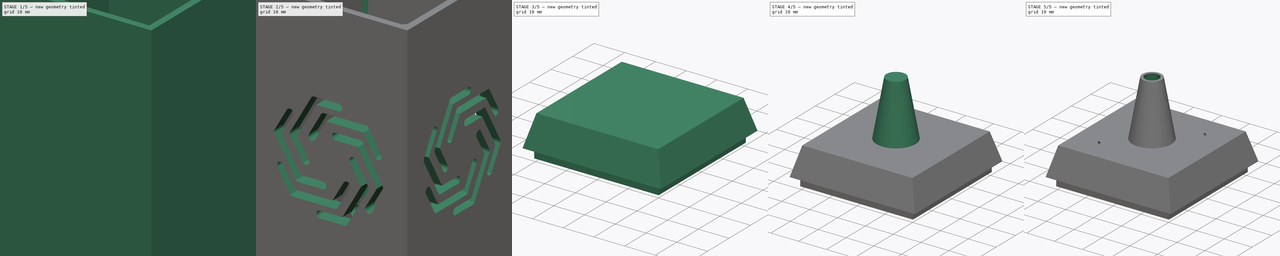
[diagram: build sequence overview — one tinted view per stage of 5, left to right]
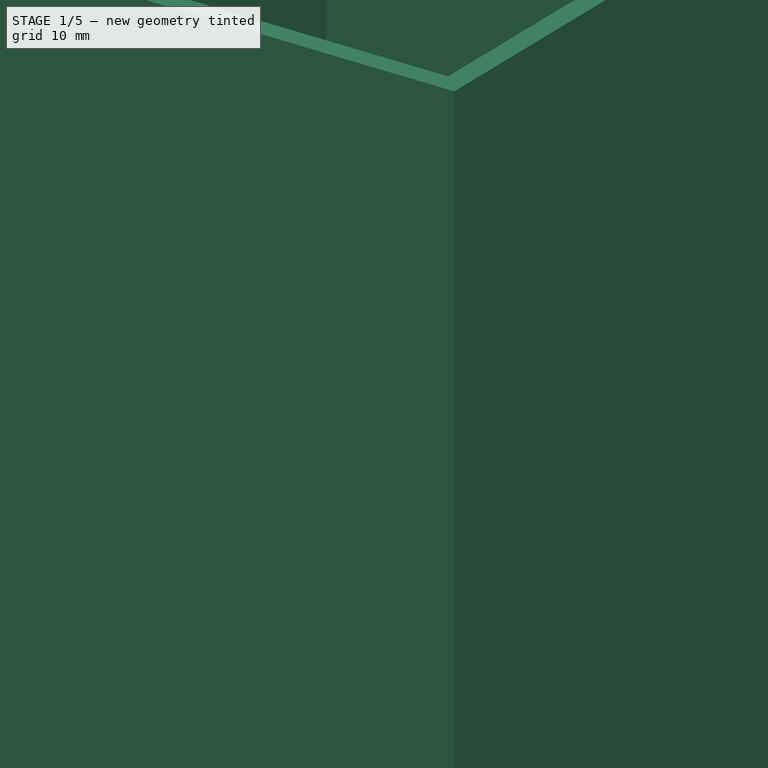
[diagram: stage 1 of 5 — iso view after this stage's code; geometry added in this stage tinted green]
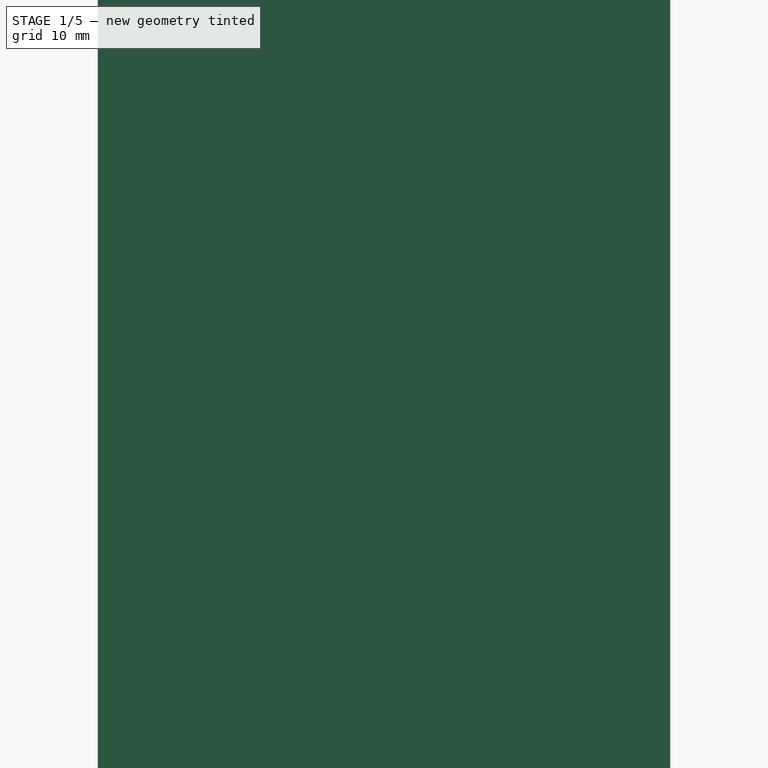
[diagram: stage 1 of 5 — front view after this stage's code; geometry added in this stage tinted green]
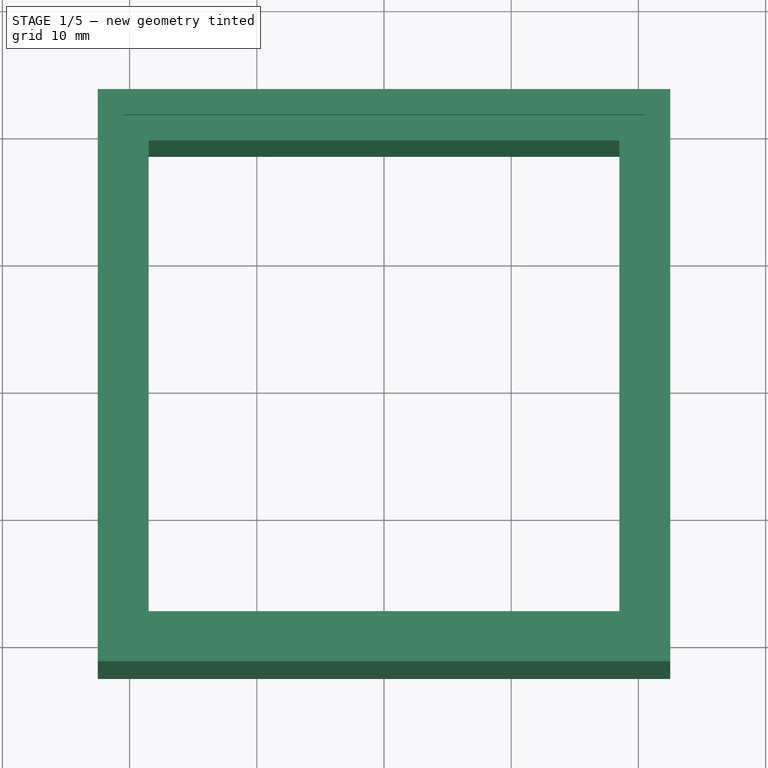
[diagram: stage 1 of 5 — top view after this stage's code; geometry added in this stage tinted green]
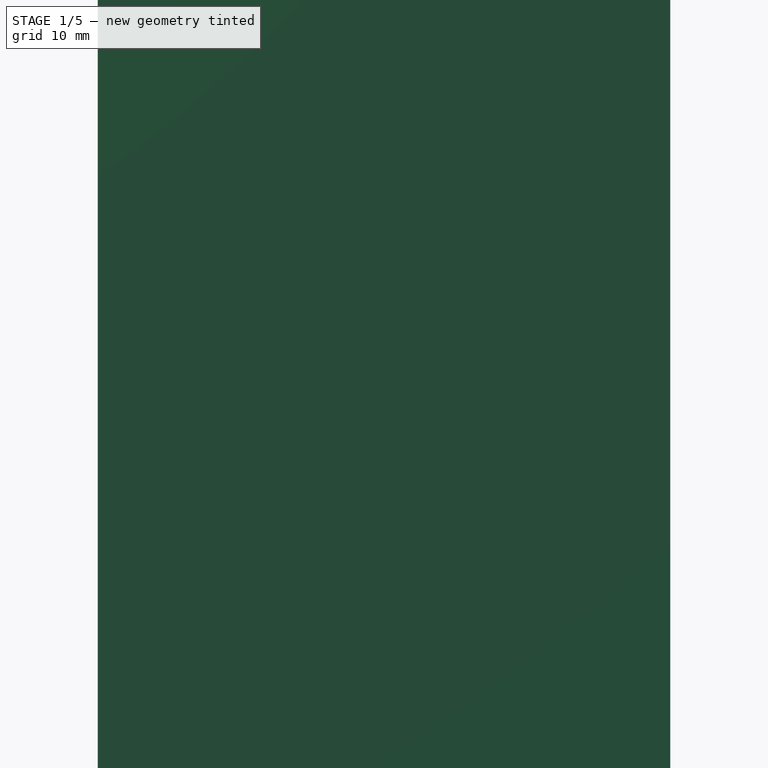
[diagram: stage 1 of 5 — right view after this stage's code; geometry added in this stage tinted green]
FCSTD DOCUMENT  (FreeCAD 1.0RUnknown)
Label: lesson44-multi-body-transform
License: All rights reserved
LicenseURL: https://en.wikipedia.org/wiki/All_rights_reserved
objects: Sketcher::SketchObject×10, PartDesign::Pocket×7, PartDesign::PolarPattern×5, PartDesign::Pad×4, PartDesign::Body×3, PartDesign::MultiTransform×2, PartDesign::Chamfer×2, PartDesign::Mirrored×1, PartDesign::SubShapeBinder×1, PartDesign::FeatureBase×1, Part::Part2DObjectPython×1
note: 82 computed .brp shape members not serialized (recipe doc carries the construction recipe); baked Part::Feature solids carry a one-line shape summary decoded from their .brp

FEATURE [Sketcher::SketchObject] Sketch
  ArcFitTolerance = 1e-06
  AttachmentSupport = -> [XY_Plane]
  FullyConstrained = true
  MakeInternals = false
  MapMode = 5
  sketch-geometry (13):
    g0: LineSegment StartX=18.5 StartY=-18.5 StartZ=0 EndX=18.5 EndY=18.5 EndZ=0
    g1: LineSegment StartX=18.5 StartY=18.5 StartZ=0 EndX=-18.5 EndY=18.5 EndZ=0
    g2: LineSegment StartX=-18.5 StartY=18.5 StartZ=0 EndX=-18.5 EndY=-18.5 EndZ=0
    g3: LineSegment StartX=-18.5 StartY=-18.5 StartZ=0 EndX=18.5 EndY=-18.5 EndZ=0
    g4: LineSegment StartX=22.5 StartY=-22.5 StartZ=0 EndX=22.5 EndY=22.5 EndZ=0
    g5: LineSegment StartX=22.5 StartY=22.5 StartZ=0 EndX=-22.5 EndY=22.5 EndZ=0
    g6: LineSegment StartX=-22.5 StartY=22.5 StartZ=0 EndX=-22.5 EndY=-22.5 EndZ=0
    g7: LineSegment StartX=-22.5 StartY=-22.5 StartZ=0 EndX=22.5 EndY=-22.5 EndZ=0
    g8: LineSegment [constr] StartX=18.5 StartY=-18.5 StartZ=0 EndX=22.5 EndY=-22.5 EndZ=0
    g9: LineSegment [constr] StartX=18.5 StartY=18.5 StartZ=0 EndX=22.5 EndY=22.5 EndZ=0
    g10: LineSegment [constr] StartX=-18.5 StartY=18.5 StartZ=0 EndX=-22.5 EndY=22.5 EndZ=0
    g11: LineSegment [constr] StartX=-18.5 StartY=-18.5 StartZ=0 EndX=-22.5 EndY=-22.5 EndZ=0
    g12: GeomPoint [constr] X=0 Y=0 Z=0
  constraints (32):
    c: Coincident(g0,g1)
    c: Coincident(g1,g2)
    c: Coincident(g2,g3)
    c: Coincident(g3,g0)
    c: Vertical(g0)
    c: Vertical(g2)
    c: Horizontal(g1)
    c: Horizontal(g3)
    c: Coincident(g4,g5)
    c: Coincident(g5,g6)
    c: Coincident(g6,g7)
    c: Coincident(g7,g4)
    c: Vertical(g4)
    c: Vertical(g6)
    c: Horizontal(g5)
    c: Horizontal(g7)
    c: Coincident(g8,g0)
    c: Coincident(g8,g4)
    c: Coincident(g9,g1)
    c: Coincident(g9,g5)
    c: Coincident(g10,g2)
    c: Coincident(g10,g6)
    c: Coincident(g11,g3)
    c: Coincident(g11,g7)
    c: Perpendicular(g8,g9)
    c: Perpendicular(g9,g10)
    c: Perpendicular(g10,g11)
    c: Symmetric(g2,g0,g12)
    c: Coincident(g12,g-1)
    c: Distance(g7,g7) = 45
    c: Equal(g7,g6)
    c: DistanceX(g5,g1) = 4
FEATURE [PartDesign::Pad] Pad
  Direction = (0,0,1)
  Length = 80
  Length2 = 10
  Midplane = true
  Profile = -> Sketch
  ReferenceAxis = -> Sketch [N_Axis]
  Refine = true
  Suppressed = false
  Type = 0
FEATURE [Sketcher::SketchObject] Sketch001
  ArcFitTolerance = 1e-06
  AttachmentSupport = -> [Pad]
  ExternalGeometry = -> [Pad]
  FullyConstrained = true
  MakeInternals = false
  MapMode = 5
  Placement = pos=(0,0,40) rot=(0,0,1;0rad)
  sketch-geometry (5):
    g0: LineSegment StartX=20.5 StartY=-20.5 StartZ=0 EndX=20.5 EndY=20.5 EndZ=0
    g1: LineSegment StartX=20.5 StartY=20.5 StartZ=0 EndX=-20.5 EndY=20.5 EndZ=0
    g2: LineSegment StartX=-20.5 StartY=20.5 StartZ=0 EndX=-20.5 EndY=-20.5 EndZ=0
    g3: LineSegment StartX=-20.5 StartY=-20.5 StartZ=0 EndX=20.5 EndY=-20.5 EndZ=0
    g4: GeomPoint [constr] X=4.3643e-11 Y=0 Z=0
  constraints (13):
    c: Coincident(g0,g1)
    c: Coincident(g1,g2)
    c: Coincident(g2,g3)
    c: Coincident(g3,g0)
    c: Vertical(g0)
    c: Vertical(g2)
    c: Horizontal(g1)
    c: Horizontal(g3)
    c: Symmetric(g2,g0,g4)
    c: PointOnObject(g4,g-1)
    c: DistanceY(g1,g-3) = 2
    c: DistanceX(g-3,g1) = 2
    c: Equal(g1,g2)
FEATURE [PartDesign::Pocket] Pocket
  BaseFeature = -> Pad
  Direction = (0,0,-1)
  Length = 3
  Length2 = 5
  Profile = -> Sketch001
  ReferenceAxis = -> Sketch001 [N_Axis]
  Refine = true
  Suppressed = false
  Type = 0
FEATURE [PartDesign::Mirrored] Mirrored
  BaseFeature = -> Pocket
  MirrorPlane = -> XY_Plane
  Originals = -> [Pocket]
  Refine = true
  Suppressed = false
  TransformMode = 0
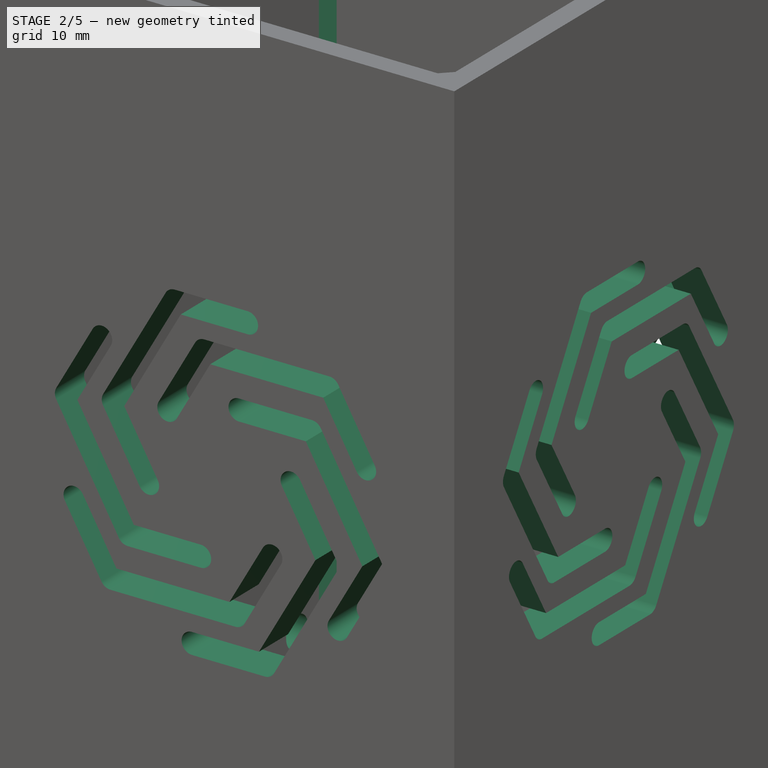
[diagram: stage 2 of 5 — iso view after this stage's code; geometry added in this stage tinted green]
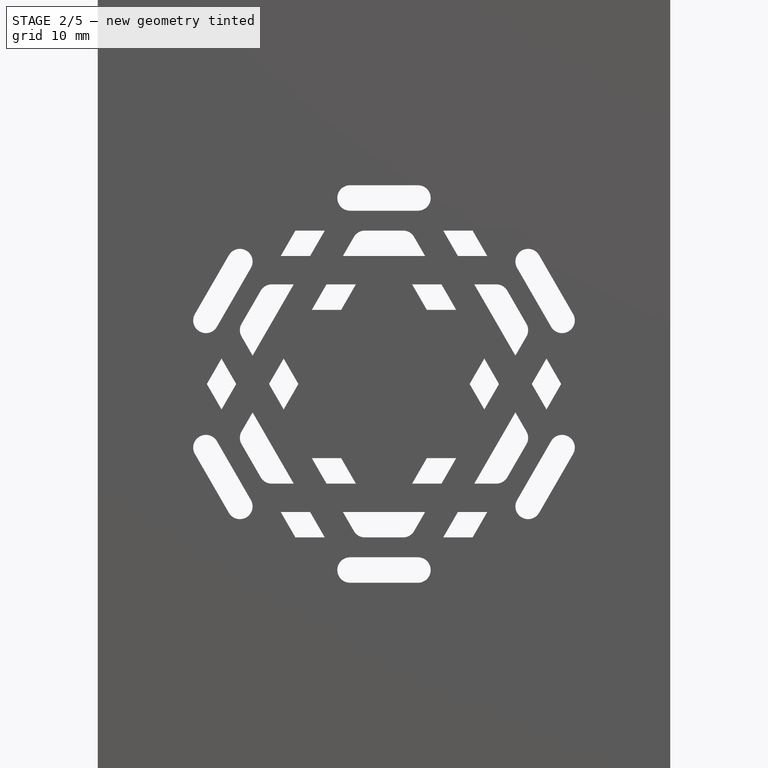
[diagram: stage 2 of 5 — front view after this stage's code; geometry added in this stage tinted green]
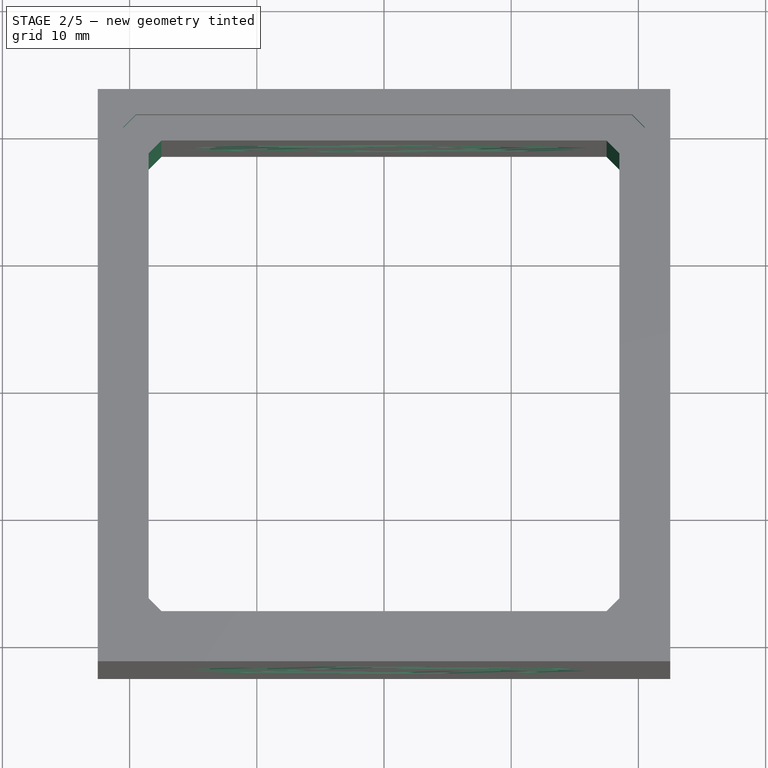
[diagram: stage 2 of 5 — top view after this stage's code; geometry added in this stage tinted green]
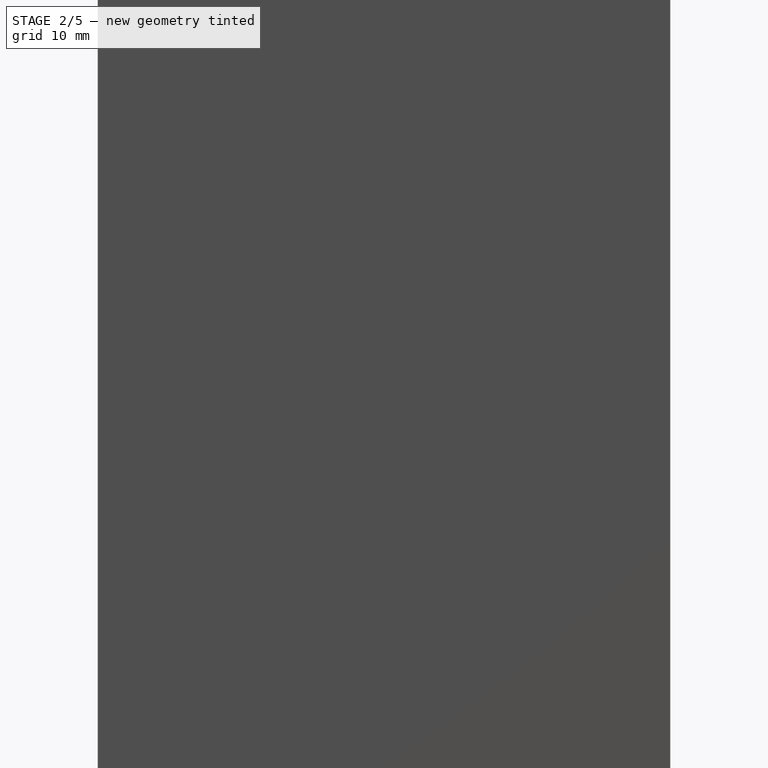
[diagram: stage 2 of 5 — right view after this stage's code; geometry added in this stage tinted green]
FEATURE [Sketcher::SketchObject] Sketch002
  ArcFitTolerance = 1e-06
  AttachmentSupport = -> [Mirrored]
  FullyConstrained = true
  MakeInternals = false
  MapMode = 5
  Placement = pos=(0,-22.5,0) rot=(1,0,0;1.5708rad)
  sketch-geometry (15):
    g0: LineSegment [constr] StartX=-5 StartY=5 StartZ=0 EndX=-1.5 EndY=11.0622 EndZ=0
    g1: LineSegment [constr] StartX=-1.5 StartY=11.0622 StartZ=0 EndX=10.5 EndY=11.0622 EndZ=0
    g2: LineSegment [constr] StartX=10.5 StartY=11.0622 StartZ=0 EndX=14 EndY=5 EndZ=0
    g3: ArcOfCircle CenterX=14 CenterY=5 CenterZ=0 NormalX=0 NormalY=0 NormalZ=-1 AngleXU=1.0472 Radius=1 StartAngle=1.5708 EndAngle=4.71239
    g4: LineSegment StartX=9.92265 StartY=10.0622 StartZ=0 EndX=13.134 EndY=4.5 EndZ=0
    g5: LineSegment StartX=-0.92265 StartY=10.0622 StartZ=0 EndX=9.92265 EndY=10.0622 EndZ=0
    g6: LineSegment StartX=-4.13397 StartY=4.5 StartZ=0 EndX=-0.92265 EndY=10.0622 EndZ=0
    g7: ArcOfCircle CenterX=-5 CenterY=5 CenterZ=0 NormalX=0 NormalY=0 NormalZ=-1 AngleXU=2.0944 Radius=1 StartAngle=1.5708 EndAngle=4.71239
    g8: LineSegment StartX=-5.86603 StartY=5.5 StartZ=0 EndX=-2.36603 EndY=11.5622 EndZ=0
    g9: ArcOfCircle CenterX=-1.5 CenterY=11.0622 CenterZ=0 NormalX=0 NormalY=0 NormalZ=-1 AngleXU=-1.0472 Radius=1 StartAngle=1.5708 EndAngle=2.61799
    g10: LineSegment StartX=-1.5 StartY=12.0622 StartZ=0 EndX=10.5 EndY=12.0622 EndZ=0
    g11: ArcOfCircle CenterX=10.5 CenterY=11.0622 CenterZ=0 NormalX=0 NormalY=0 NormalZ=-1 AngleXU=0 Radius=1 StartAngle=1.5708 EndAngle=2.61799
    g12: LineSegment StartX=11.366 StartY=11.5622 StartZ=0 EndX=14.866 EndY=5.5 EndZ=0
    g13: LineSegment [constr] StartX=-1.5 StartY=10.0622 StartZ=0 EndX=-1.5 EndY=11.0622 EndZ=0
    g14: LineSegment [constr] StartX=-4.13397 StartY=4.5 StartZ=0 EndX=-5 EndY=5 EndZ=0
  constraints (38):
    c: Coincident(g0,g1)
    c: Horizontal(g1)
    c: Coincident(g1,g2)
    c: DistanceY(g-1,g0) = 5
    c: DistanceX(g0,g-1) = 5
    c: Angle(g0,g1) = 2.0944
    c: DistanceX(g1,g1) = 12
    c: Angle(g1,g2) = 2.0944
    c: Equal(g2,g0)
    c: Distance(g0,g0) = 7
    c: Tangent(g3,g4) = -1.5708
    c: Tangent(g3,g12) = 1.5708
    c: Coincident(g4,g5)
    c: Coincident(g5,g6)
    c: Tangent(g6,g7) = -1.5708
    c: Tangent(g7,g8) = 1.5708
    c: Tangent(g8,g9) = 1.5708
    c: Tangent(g9,g10) = 1.5708
    c: Tangent(g10,g11) = 1.5708
    c: Tangent(g11,g12) = 1.5708
    c: Perpendicular(g13,g5)
    c: PointOnObject(g13,g5)
    c: Perpendicular(g14,g6)
    c: PointOnObject(g14,g6)
    c: Parallel(g12,g2)
    c: Coincident(g3,g2)
    c: Parallel(g4,g2)
    c: Parallel(g5,g1)
    c: Parallel(g6,g0)
    c: Equal(g14,g13)
    c: Coincident(g7,g0)
    c: Parallel(g8,g0)
    c: Coincident(g9,g0)
    c: Parallel(g10,g1)
    c: Coincident(g11,g1)
    c: Distance(g13) = 1
    c: Coincident(g0,g13)
    c: Coincident(g14,g0)
FEATURE [PartDesign::Pocket] Pocket001
  BaseFeature = -> Mirrored
  Direction = (0,1,-2e-16)
  Length = 5
  Length2 = 5
  Profile = -> Sketch002
  ReferenceAxis = -> Sketch002 [N_Axis]
  Refine = true
  Suppressed = false
  Type = 0
FEATURE [PartDesign::PolarPattern] PolarPattern
  Angle = 360
  Axis = -> Sketch002 [N_Axis]
  Mode = 0
  Occurrences = 3
  Offset = 120
  Refine = true
  Suppressed = false
  TransformMode = 0
FEATURE [PartDesign::PolarPattern] PolarPattern001
  Angle = 360
  Axis = -> Sketch002 [N_Axis]
  Mode = 0
  Occurrences = 2
  Offset = 120
  Refine = true
  Suppressed = false
  TransformMode = 0
FEATURE [PartDesign::PolarPattern] PolarPattern002
  Angle = 360
  Axis = -> Z_Axis
  Mode = 1
  Occurrences = 3
  Offset = 90
  Refine = true
  Suppressed = false
  TransformMode = 0
  expr: Offset = 360 / 4
FEATURE [PartDesign::MultiTransform] MultiTransform
  BaseFeature = -> Pocket001
  Originals = -> [Pocket001]
  Refine = true
  Suppressed = false
  TransformMode = 0
  Transformations = -> [PolarPattern,PolarPattern001,PolarPattern002]
FEATURE [Sketcher::SketchObject] Sketch003
  ArcFitTolerance = 1e-06
  AttachmentSupport = -> [MultiTransform]
  ExternalGeometry = -> [MultiTransform]
  FullyConstrained = true
  MakeInternals = false
  MapMode = 5
  Placement = pos=(-22.5,0,0) rot=(0.57735,-0.57735,-0.57735;2.0944rad)
  sketch-geometry (9):
    g0: LineSegment [constr] StartX=14.5 StartY=-32 StartZ=0 EndX=14.5 EndY=32 EndZ=0
    g1: LineSegment [constr] StartX=14.5 StartY=32 StartZ=0 EndX=-14.5 EndY=32 EndZ=0
    g2: LineSegment [constr] StartX=-14.5 StartY=32 StartZ=0 EndX=-14.5 EndY=-32 EndZ=0
    g3: LineSegment [constr] StartX=-14.5 StartY=-32 StartZ=0 EndX=14.5 EndY=-32 EndZ=0
    g4: GeomPoint [constr] X=0 Y=0 Z=0
    g5: Circle CenterX=-14.5 CenterY=32 CenterZ=0 NormalX=0 NormalY=0 NormalZ=1 AngleXU=0 Radius=1.5
    g6: Circle CenterX=14.5 CenterY=32 CenterZ=0 NormalX=0 NormalY=0 NormalZ=1 AngleXU=0 Radius=1.5
    g7: Circle CenterX=14.5 CenterY=-32 CenterZ=0 NormalX=0 NormalY=0 NormalZ=1 AngleXU=0 Radius=1.5
    g8: Circle CenterX=-14.5 CenterY=-32 CenterZ=0 NormalX=0 NormalY=0 NormalZ=1 AngleXU=0 Radius=1.5
  constraints (20):
    c: Coincident(g0,g1)
    c: Coincident(g1,g2)
    c: Coincident(g2,g3)
    c: Coincident(g3,g0)
    c: Vertical(g0)
    c: Vertical(g2)
    c: Horizontal(g1)
    c: Horizontal(g3)
    c: Symmetric(g2,g0,g4)
    c: Coincident(g4,g-1)
    c: Coincident(g5,g1)
    c: Coincident(g6,g0)
    c: Coincident(g7,g0)
    c: Coincident(g8,g2)
    c: Equal(g5,g6)
    c: Equal(g6,g7)
    c: Equal(g7,g8)
    c: Diameter(g8) = 3
    c: DistanceY(g1,g-3) = 8
    c: DistanceX(g-3,g1) = 8
FEATURE [PartDesign::Pocket] Pocket002
  BaseFeature = -> MultiTransform
  Direction = (1,0,0)
  Length = 5
  Length2 = 5
  Profile = -> Sketch003
  ReferenceAxis = -> Sketch003 [N_Axis]
  Refine = true
  Suppressed = false
  Type = 0
FEATURE [PartDesign::Chamfer] Chamfer
  Angle = 45
  Base = -> Pocket002 [Edge583,Edge582,Edge594,Edge600,Edge456,Edge454,Edge453,Edge458]
  BaseFeature = -> Pocket002
  ChamferType = 0
  FlipDirection = false
  Refine = true
  Size = 1
  Size2 = 1
  SupportTransform = false
  Suppressed = false
  UseAllEdges = false
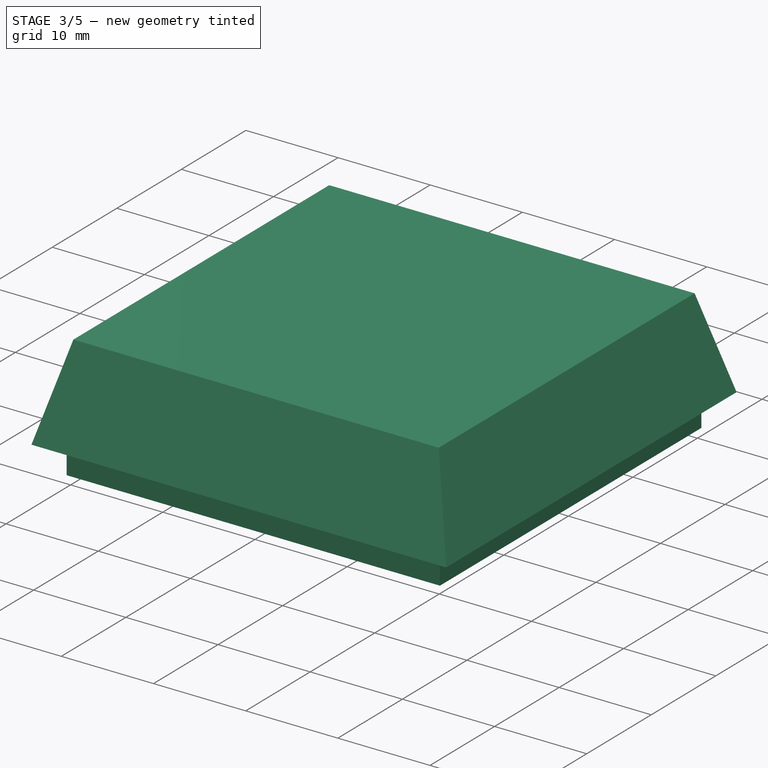
[diagram: stage 3 of 5 — iso view after this stage's code; geometry added in this stage tinted green]
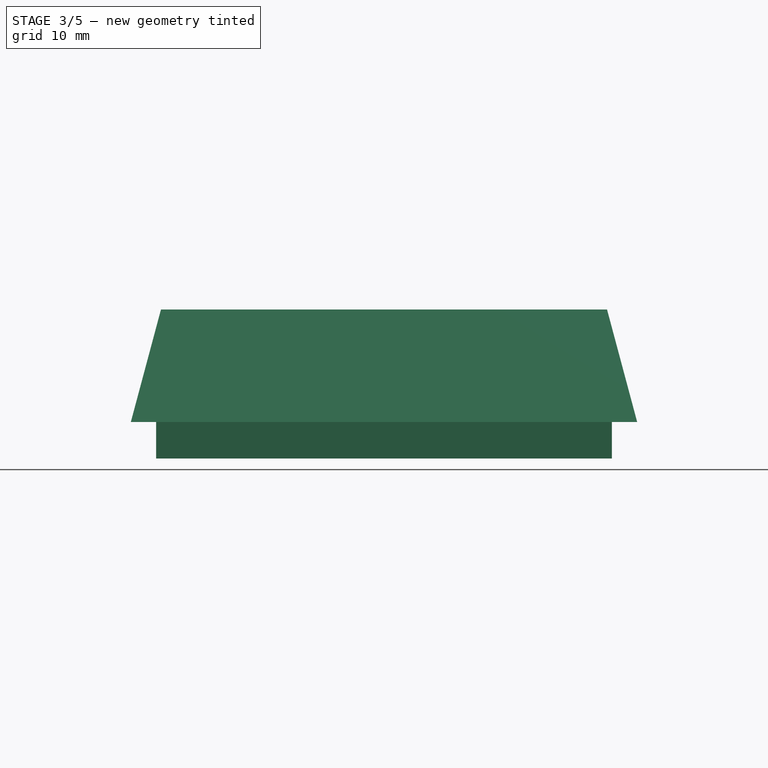
[diagram: stage 3 of 5 — front view after this stage's code; geometry added in this stage tinted green]
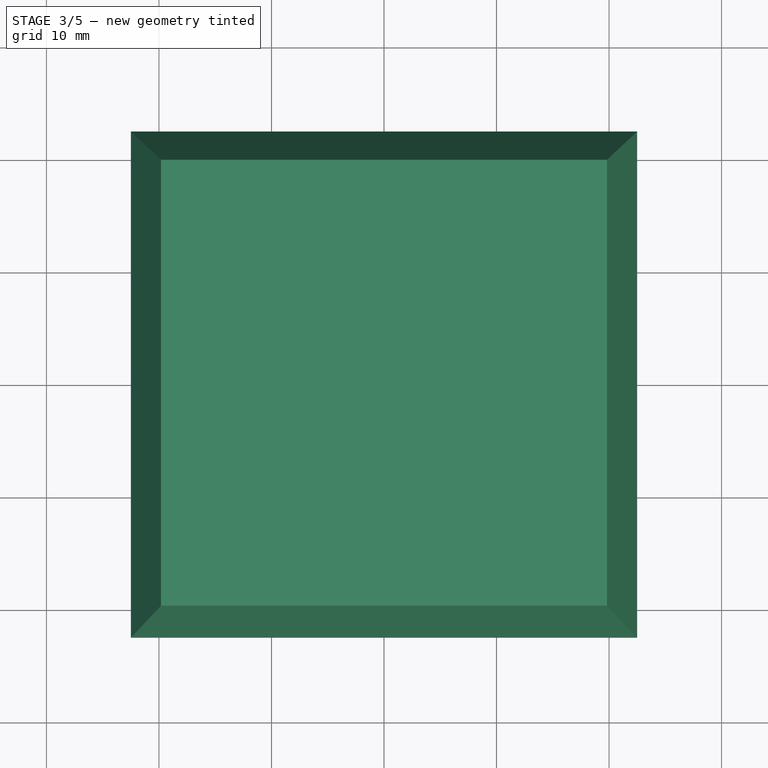
[diagram: stage 3 of 5 — top view after this stage's code; geometry added in this stage tinted green]
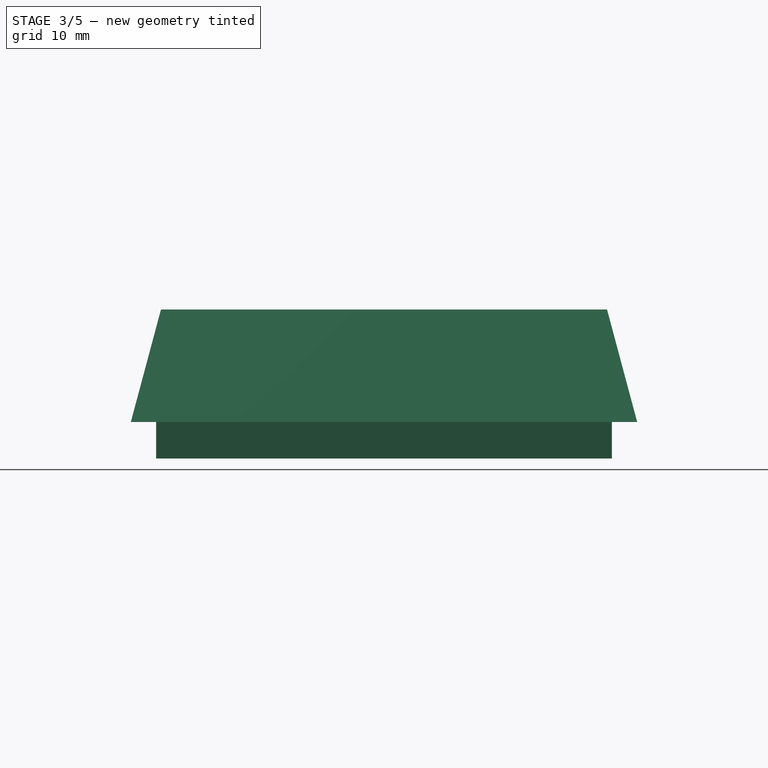
[diagram: stage 3 of 5 — right view after this stage's code; geometry added in this stage tinted green]
FEATURE [PartDesign::Body] Body  label="MidBody"
  AllowCompound = false
  Group = -> [Sketch,Pad,Sketch001,Pocket,Mirrored,Sketch002,Pocket001,MultiTransform,PolarPattern,PolarPattern001,PolarPattern002,Sketch003,Pocket002,Chamfer]
  Origin = -> Origin
  Tip = -> Chamfer
FEATURE [PartDesign::SubShapeBinder] Binder
  BindCopyOnChange = 0
  BindMode = 0
  ClaimChildren = false
  Context = -> Body001 [Binder.]
  Fuse = false
  MakeFace = true
  OffsetFill = false
  OffsetIntersection = false
  OffsetJoinType = 0
  OffsetOpenResult = false
  PartialLoad = false
  Refine = true
  Relative = true
  Support = -> [Body[Pocket001.Face27]]
  _Version = 2
FEATURE [Sketcher::SketchObject] Sketch004
  ArcFitTolerance = 1e-06
  AttachmentSupport = -> [Binder]
  ExternalGeometry = -> [Binder]
  FullyConstrained = true
  MakeInternals = false
  MapMode = 5
  Placement = pos=(0,0,37) rot=(0,0,1;0rad)
  sketch-geometry (10):
    g0: LineSegment StartX=20.25 StartY=-20.25 StartZ=0 EndX=20.25 EndY=20.25 EndZ=0
    g1: LineSegment StartX=20.25 StartY=20.25 StartZ=0 EndX=-20.25 EndY=20.25 EndZ=0
    g2: LineSegment StartX=-20.25 StartY=20.25 StartZ=0 EndX=-20.25 EndY=-20.25 EndZ=0
    g3: LineSegment StartX=-20.25 StartY=-20.25 StartZ=0 EndX=20.25 EndY=-20.25 EndZ=0
    g4: GeomPoint [constr] X=0 Y=0 Z=0
    g5: LineSegment StartX=18.5 StartY=-18.5 StartZ=0 EndX=18.5 EndY=18.5 EndZ=0
    g6: LineSegment StartX=18.5 StartY=18.5 StartZ=0 EndX=-18.5 EndY=18.5 EndZ=0
    g7: LineSegment StartX=-18.5 StartY=18.5 StartZ=0 EndX=-18.5 EndY=-18.5 EndZ=0
    g8: LineSegment StartX=-18.5 StartY=-18.5 StartZ=0 EndX=18.5 EndY=-18.5 EndZ=0
    g9: GeomPoint [constr] X=0 Y=0 Z=0
  constraints (23):
    c: Coincident(g0,g1)
    c: Coincident(g1,g2)
    c: Coincident(g2,g3)
    c: Coincident(g3,g0)
    c: Vertical(g0)
    c: Vertical(g2)
    c: Horizontal(g1)
    c: Horizontal(g3)
    c: Symmetric(g2,g0,g4)
    c: Coincident(g4,g-1)
    c: DistanceY(g1,g-3) = 0.25
    c: DistanceX(g-3,g1) = 0.25
    c: Coincident(g5,g6)
    c: Coincident(g6,g7)
    c: Coincident(g7,g8)
    c: Coincident(g8,g5)
    c: Vertical(g5)
    c: Vertical(g7)
    c: Horizontal(g6)
    c: Horizontal(g8)
    c: Symmetric(g7,g5,g9)
    c: Coincident(g9,g4)
    c: Coincident(g6,g-4)
FEATURE [PartDesign::Pad] Pad001
  Direction = (0,0,1)
  Length = 3.25
  Length2 = 10
  Profile = -> Sketch004
  ReferenceAxis = -> Sketch004 [N_Axis]
  Refine = true
  Suppressed = false
  Type = 0
FEATURE [Sketcher::SketchObject] Sketch005
  ArcFitTolerance = 1e-06
  AttachmentSupport = -> [Pad001]
  FullyConstrained = true
  MakeInternals = false
  MapMode = 5
  Placement = pos=(0,0,40.25) rot=(0,0,1;0rad)
  sketch-geometry (5):
    g0: LineSegment StartX=-22.5 StartY=-22.5 StartZ=0 EndX=22.5 EndY=-22.5 EndZ=0
    g1: LineSegment StartX=22.5 StartY=-22.5 StartZ=0 EndX=22.5 EndY=22.5 EndZ=0
    g2: LineSegment StartX=22.5 StartY=22.5 StartZ=0 EndX=-22.5 EndY=22.5 EndZ=0
    g3: LineSegment StartX=-22.5 StartY=22.5 StartZ=0 EndX=-22.5 EndY=-22.5 EndZ=0
    g4: GeomPoint [constr] X=0 Y=0 Z=0
  constraints (12):
    c: Coincident(g0,g1)
    c: Coincident(g1,g2)
    c: Coincident(g2,g3)
    c: Coincident(g3,g0)
    c: Horizontal(g0)
    c: Horizontal(g2)
    c: Vertical(g1)
    c: Vertical(g3)
    c: Symmetric(g2,g0,g4)
    c: Distance(g1,g3) = 45
    c: Coincident(g4,g-1)
    c: Equal(g2,g3)
FEATURE [PartDesign::Pad] Pad002
  BaseFeature = -> Pad001
  Direction = (0,0,1)
  Length = 10
  Length2 = 10
  Profile = -> Sketch005
  ReferenceAxis = -> Sketch005 [N_Axis]
  Refine = true
  Suppressed = false
  TaperAngle = -15
  Type = 0
FEATURE [Sketcher::SketchObject] Sketch006
  ArcFitTolerance = 1e-06
  AttachmentSupport = -> [Pad002]
  ExternalGeometry = -> [Pad002]
  FullyConstrained = true
  MakeInternals = false
  MapMode = 5
  Placement = pos=(0,0,40.25) rot=(1,0,0;3.14159rad)
  sketch-geometry (5):
    g0: LineSegment StartX=18.5 StartY=-18.5 StartZ=0 EndX=18.5 EndY=18.5 EndZ=0
    g1: LineSegment StartX=18.5 StartY=18.5 StartZ=0 EndX=-18.5 EndY=18.5 EndZ=0
    g2: LineSegment StartX=-18.5 StartY=18.5 StartZ=0 EndX=-18.5 EndY=-18.5 EndZ=0
    g3: LineSegment StartX=-18.5 StartY=-18.5 StartZ=0 EndX=18.5 EndY=-18.5 EndZ=0
    g4: GeomPoint [constr] X=0 Y=0 Z=0
  constraints (11):
    c: Coincident(g0,g1)
    c: Coincident(g1,g2)
    c: Coincident(g2,g3)
    c: Coincident(g3,g0)
    c: Vertical(g0)
    c: Vertical(g2)
    c: Horizontal(g1)
    c: Horizontal(g3)
    c: Symmetric(g2,g0,g4)
    c: Coincident(g4,g-1)
    c: Coincident(g1,g-3)
FEATURE [PartDesign::Pocket] Pocket003
  BaseFeature = -> Pad002
  Direction = (0,0,1)
  Length = 7
  Length2 = 5
  Profile = -> Sketch006
  ReferenceAxis = -> Sketch006 [N_Axis]
  Refine = true
  Suppressed = false
  TaperAngle = -15
  Type = 0
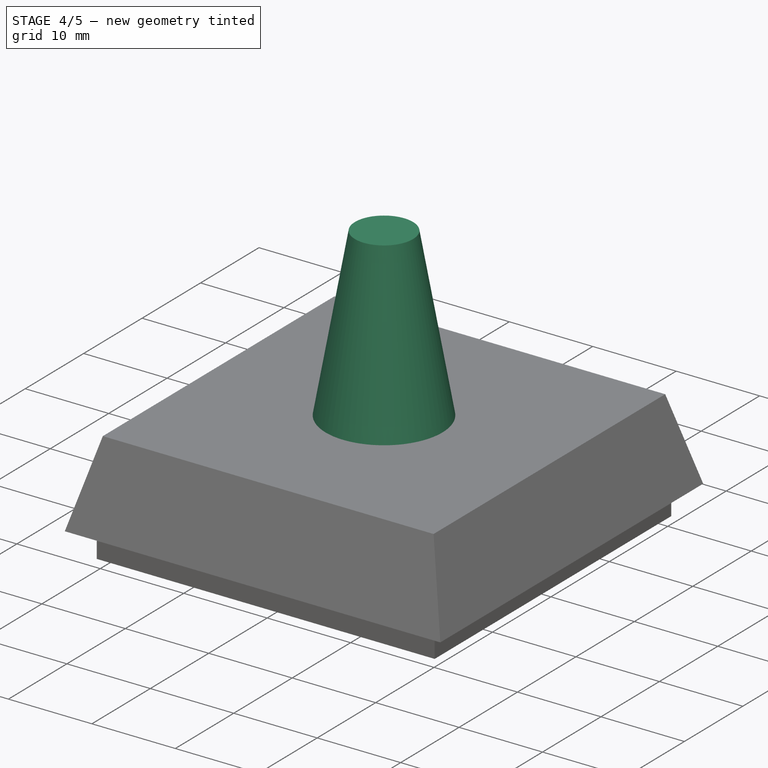
[diagram: stage 4 of 5 — iso view after this stage's code; geometry added in this stage tinted green]
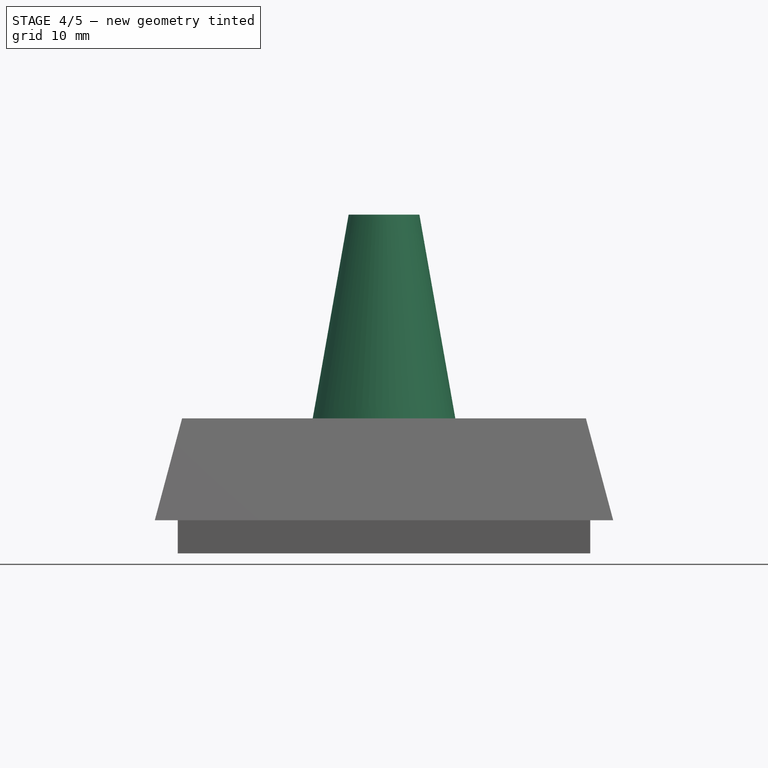
[diagram: stage 4 of 5 — front view after this stage's code; geometry added in this stage tinted green]
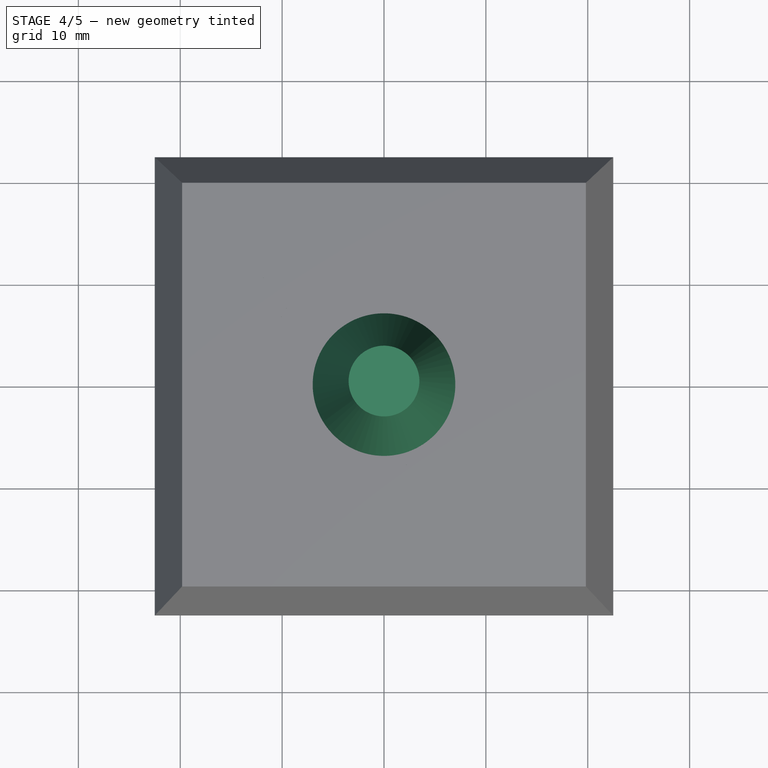
[diagram: stage 4 of 5 — top view after this stage's code; geometry added in this stage tinted green]
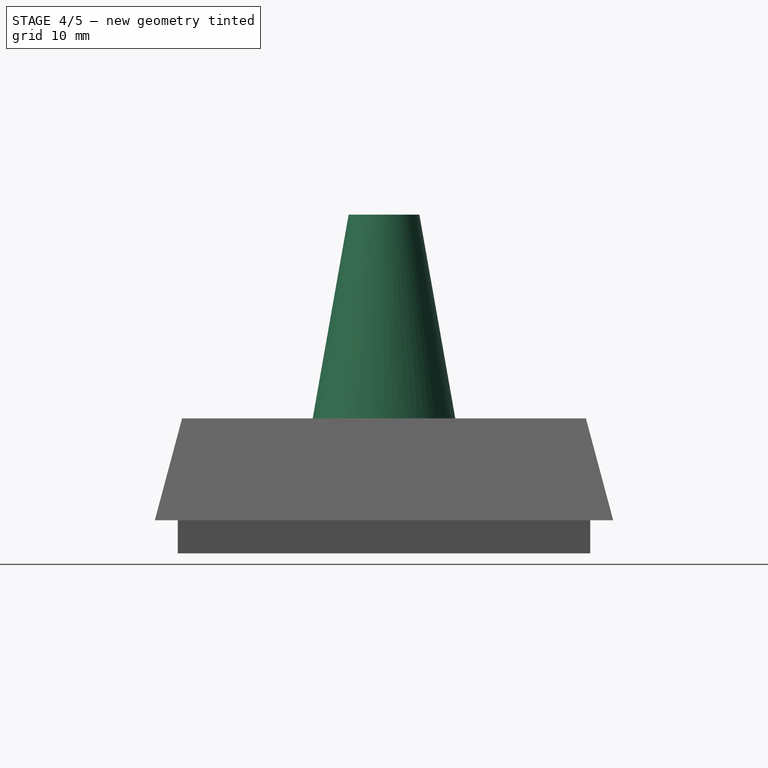
[diagram: stage 4 of 5 — right view after this stage's code; geometry added in this stage tinted green]
FEATURE [Sketcher::SketchObject] Sketch007
  ArcFitTolerance = 1e-06
  AttachmentSupport = -> [Pocket003]
  FullyConstrained = true
  MakeInternals = false
  MapMode = 5
  Placement = pos=(0,0,50.25) rot=(0,0,1;0rad)
  sketch-geometry (1):
    g0: Circle CenterX=0 CenterY=0 CenterZ=0 NormalX=0 NormalY=0 NormalZ=1 AngleXU=0 Radius=7
  constraints (2):
    c: Coincident(g0,g-1)
    c: Diameter(g0) = 14
FEATURE [PartDesign::Pad] Pad003
  BaseFeature = -> Pocket003
  Direction = (0,0,1)
  Length = 20
  Length2 = 10
  Profile = -> Sketch007
  ReferenceAxis = -> Sketch007 [N_Axis]
  Refine = true
  Suppressed = false
  TaperAngle = -10
  Type = 0
FEATURE [PartDesign::Body] Body001  label="EndCap"
  AllowCompound = false
  Group = -> [Binder,Sketch004,Pad001,Sketch005,Pad002,Sketch006,Pocket003,Sketch007,Pad003,Sketch008,Pocket004,Sketch009,Pocket005,Chamfer001]
  Origin = -> Origin001
  Tip = -> Chamfer001
FEATURE [PartDesign::FeatureBase] Clone
  BaseFeature = -> Pocket003
  Suppressed = false
FEATURE [Part::Part2DObjectPython] Clone2D  label="Sketch002 (2D)"  # Draft 2D object (typed FeaturePython)
  AttachmentSupport = -> [Clone]
  Fuse = false
  MapMode = 5
  Objects = -> [Sketch002]
  Placement = pos=(0,0,50.25) rot=(0,0,1;0rad)
  Scale = (1,1,1)
FEATURE [PartDesign::Pocket] Pocket006
  BaseFeature = -> Clone
  Direction = (0,0,-1)
  Length = 5
  Length2 = 5
  Profile = -> Clone2D
  ReferenceAxis = -> Clone2D [N_Axis]
  Refine = true
  Suppressed = false
  Type = 0
FEATURE [PartDesign::PolarPattern] PolarPattern003
  Angle = 360
  Axis = -> Clone2D [N_Axis]
  Mode = 0
  Occurrences = 3
  Offset = 120
  Refine = true
  Suppressed = false
  TransformMode = 0
FEATURE [PartDesign::PolarPattern] PolarPattern004
  Angle = 360
  Axis = -> Clone2D [N_Axis]
  Mode = 0
  Occurrences = 2
  Offset = 120
  Refine = true
  Suppressed = false
  TransformMode = 0
FEATURE [PartDesign::MultiTransform] MultiTransform001
  BaseFeature = -> Pocket006
  Originals = -> [Pocket006]
  Refine = true
  Suppressed = false
  TransformMode = 0
  Transformations = -> [PolarPattern003,PolarPattern004]
FEATURE [PartDesign::Body] Body002  label="TopCap"
  AllowCompound = false
  Group = -> [Clone,Clone2D,Pocket006,MultiTransform001,PolarPattern003,PolarPattern004]
  Origin = -> Origin002
  Placement = pos=(0,0,0) rot=(1,0,0;3.14159rad)
  Tip = -> MultiTransform001
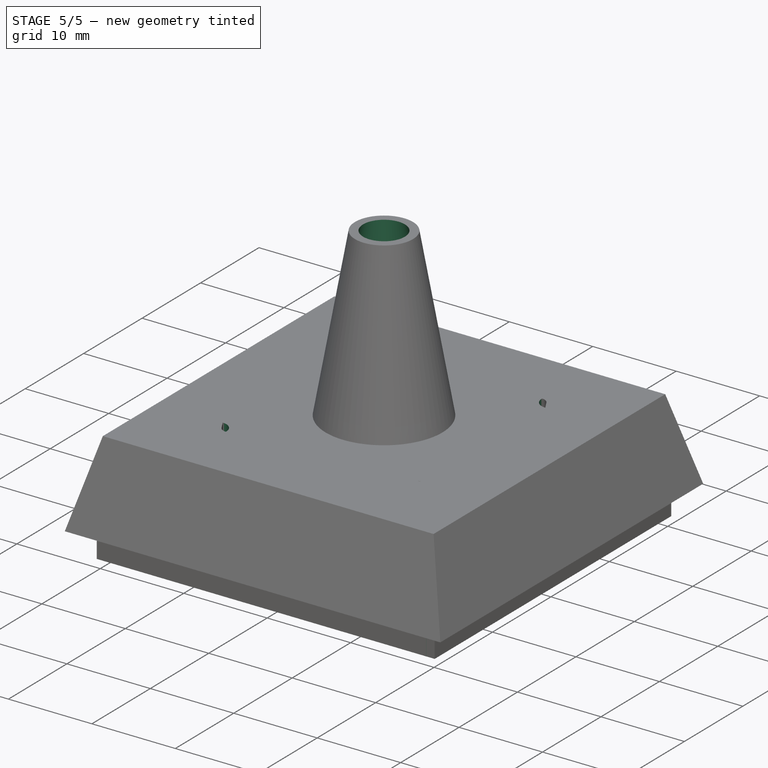
[diagram: stage 5 of 5 — iso view after this stage's code; geometry added in this stage tinted green]
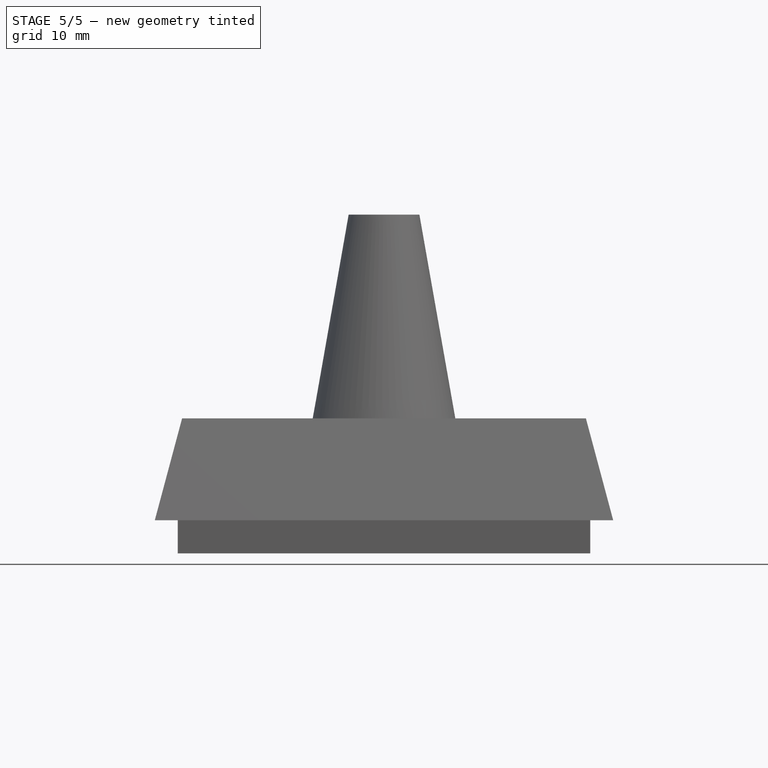
[diagram: stage 5 of 5 — front view after this stage's code; geometry added in this stage tinted green]
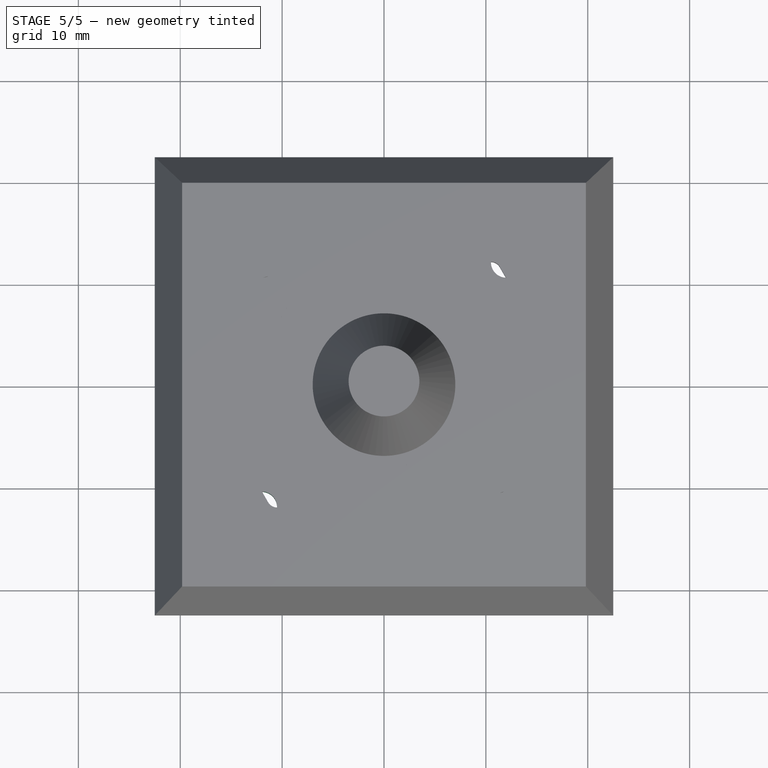
[diagram: stage 5 of 5 — top view after this stage's code; geometry added in this stage tinted green]
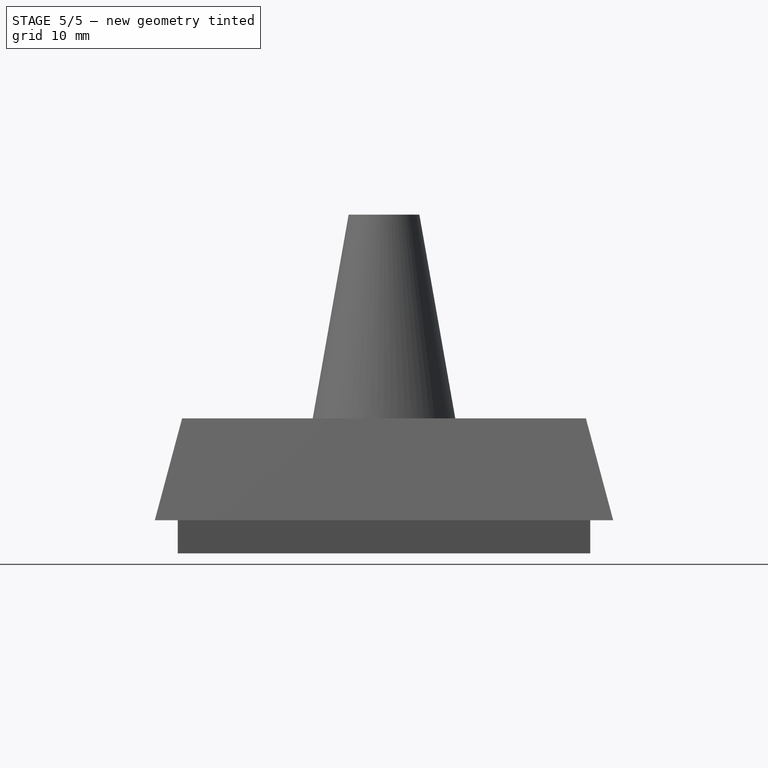
[diagram: stage 5 of 5 — right view after this stage's code; geometry added in this stage tinted green]
FEATURE [Sketcher::SketchObject] Sketch008
  ArcFitTolerance = 1e-06
  AttachmentSupport = -> [Pad003]
  FullyConstrained = true
  MakeInternals = false
  MapMode = 5
  Placement = pos=(0,0,70.25) rot=(0,0,1;0rad)
  sketch-geometry (1):
    g0: Circle CenterX=0 CenterY=0 CenterZ=0 NormalX=0 NormalY=0 NormalZ=1 AngleXU=0 Radius=2.5
  constraints (2):
    c: Coincident(g0,g-1)
    c: Diameter(g0) = 5
FEATURE [PartDesign::Pocket] Pocket004
  BaseFeature = -> Pad003
  Direction = (0,0,-1)
  Length = 25
  Length2 = 5
  Profile = -> Sketch008
  ReferenceAxis = -> Sketch008 [N_Axis]
  Refine = true
  Suppressed = false
  TaperAngle = 10
  Type = 0
FEATURE [Sketcher::SketchObject] Sketch009
  ArcFitTolerance = 1e-06
  AttachmentSupport = -> [Pocket004]
  FullyConstrained = true
  MakeInternals = false
  MapMode = 5
  Placement = pos=(0,0,50.25) rot=(0,0,1;0rad)
  sketch-geometry (4):
    g0: Circle CenterX=-12 CenterY=12 CenterZ=0 NormalX=0 NormalY=0 NormalZ=1 AngleXU=0 Radius=1.5
    g1: Circle CenterX=12 CenterY=12 CenterZ=0 NormalX=0 NormalY=0 NormalZ=1 AngleXU=0 Radius=1.5
    g2: Circle CenterX=-12 CenterY=-12 CenterZ=0 NormalX=0 NormalY=0 NormalZ=1 AngleXU=0 Radius=1.5
    g3: Circle CenterX=12 CenterY=-12 CenterZ=0 NormalX=0 NormalY=0 NormalZ=1 AngleXU=0 Radius=1.5
  constraints (11):
    c: Horizontal(g0,g1)
    c: Horizontal(g2,g3)
    c: Vertical(g2,g0)
    c: Vertical(g1,g3)
    c: Equal(g1,g0)
    c: Equal(g0,g2)
    c: Equal(g2,g3)
    c: Diameter(g0) = 3
    c: DistanceX(g0,g-1) = 12
    c: DistanceY(g-1,g0) = 12
    c: Symmetric(g0,g3,g-1)
FEATURE [PartDesign::Pocket] Pocket005
  BaseFeature = -> Pocket004
  Direction = (0,0,-1)
  Length = 5
  Length2 = 5
  Profile = -> Sketch009
  ReferenceAxis = -> Sketch009 [N_Axis]
  Refine = true
  Suppressed = false
  Type = 1
FEATURE [PartDesign::Chamfer] Chamfer001
  Angle = 45
  Base = -> Pocket005 [Edge1,Edge5,Edge8,Edge2]
  BaseFeature = -> Pocket005
  ChamferType = 0
  FlipDirection = false
  Refine = true
  Size = 1
  Size2 = 1
  SupportTransform = false
  Suppressed = false
  UseAllEdges = false
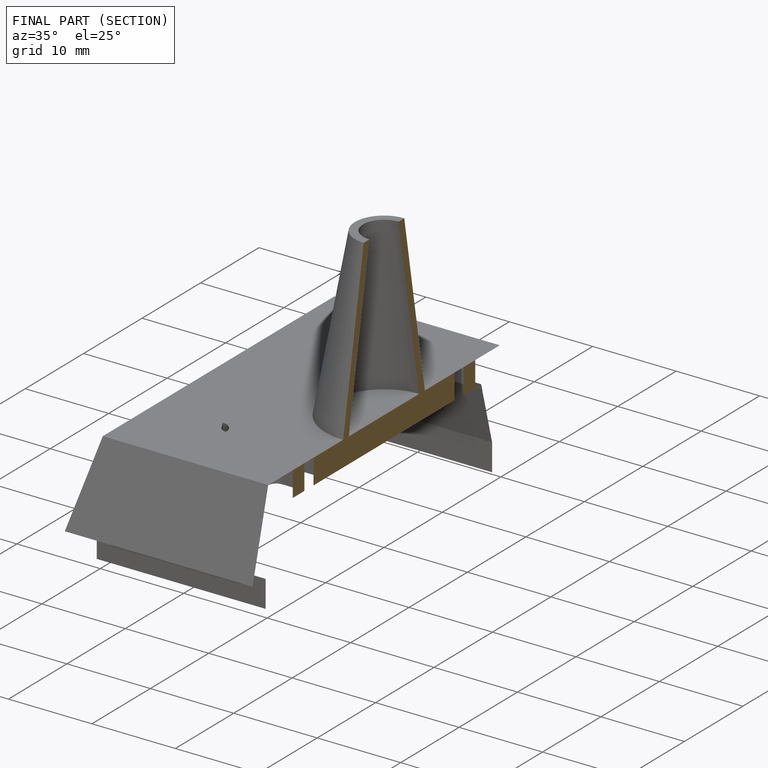
[diagram: finished part — half-section view (interior)]
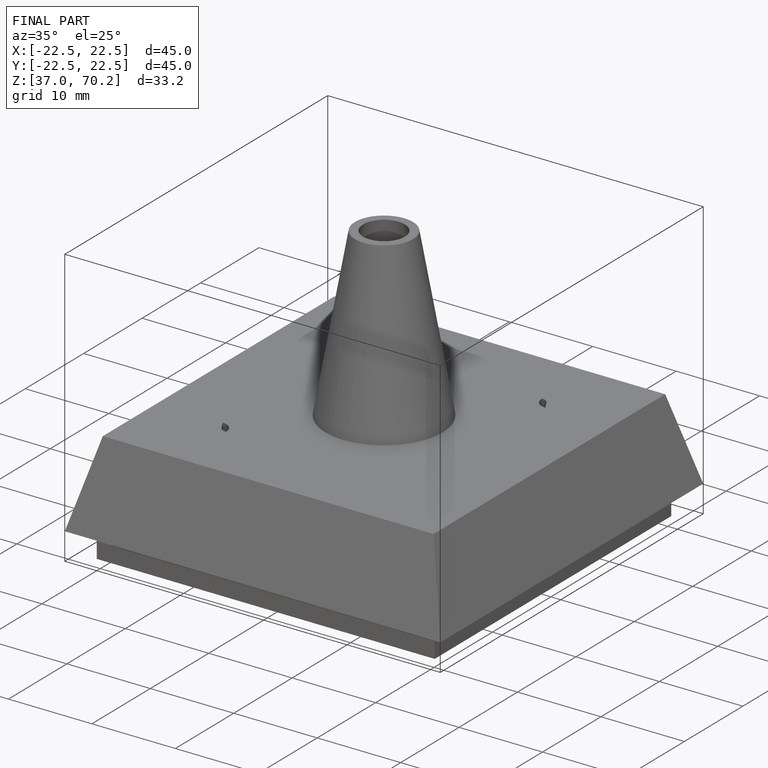
[diagram: finished part — iso view with bounding-box wireframe]
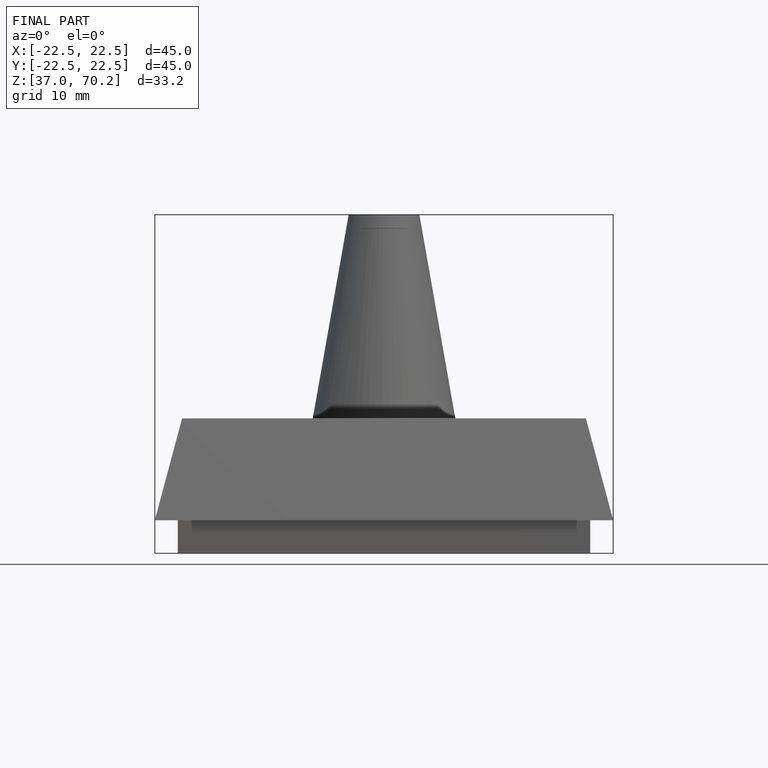
[diagram: finished part — front view with bounding-box wireframe]
